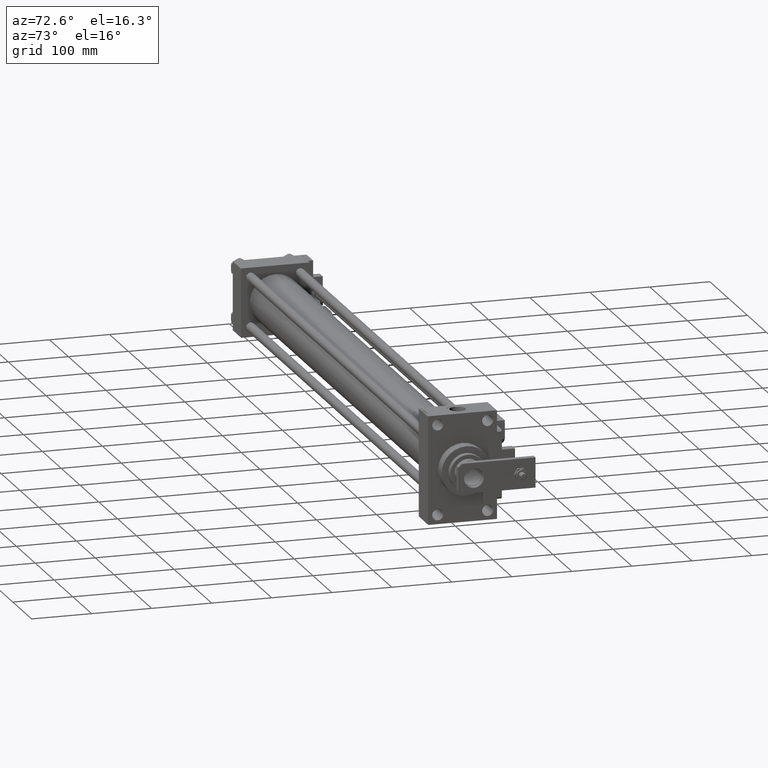
[diagram: clean part render]
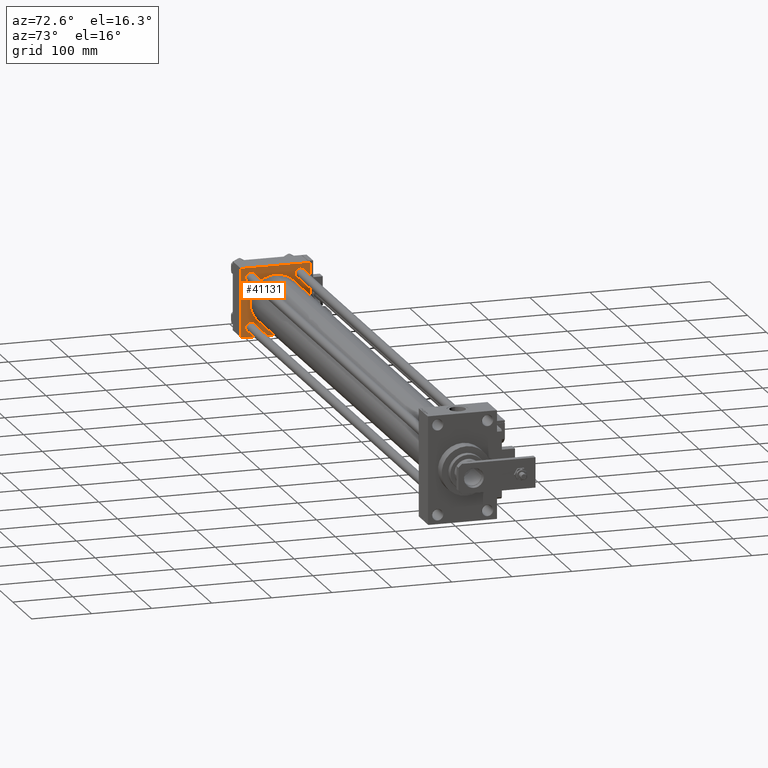
[diagram: same view with one face highlighted and labeled with its STEP entity id]
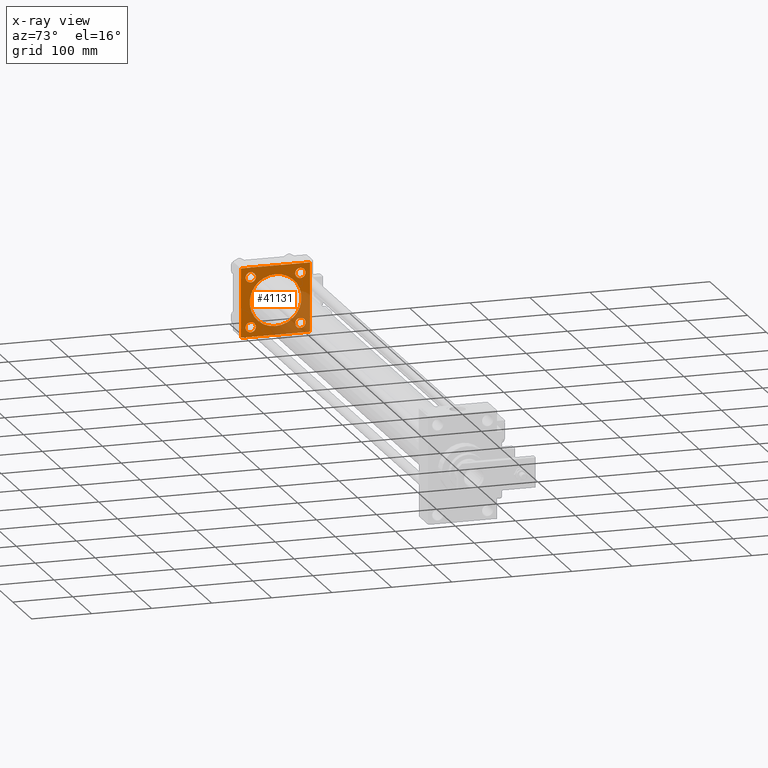
[diagram: x-ray of the same camera — body ghosted, the highlighted face saturated]
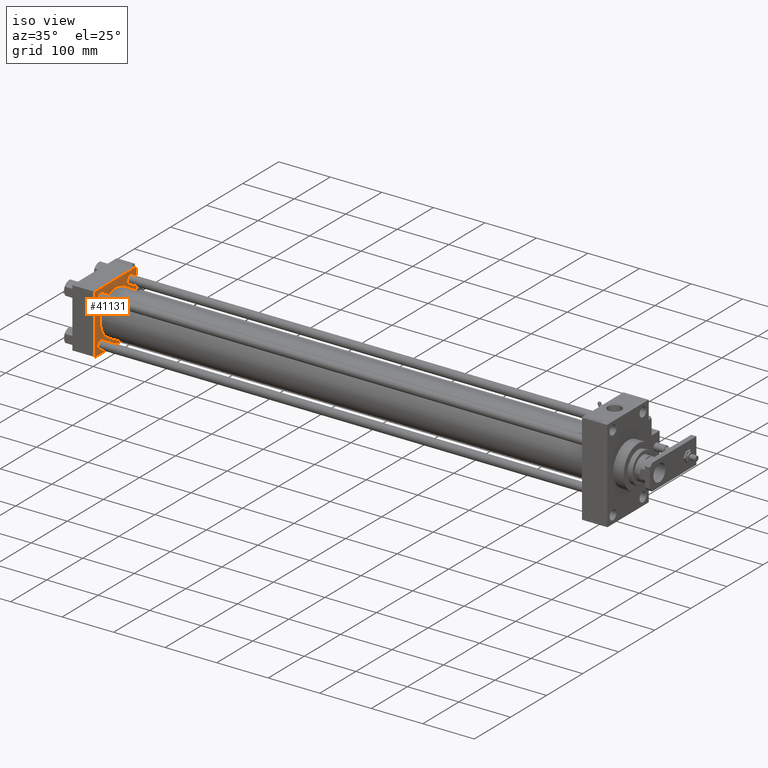
[diagram: same view with one face highlighted and labeled with its STEP entity id]
A machine part, auxiliary view. The second image highlights one B-rep face of the part: STEP entity #41131.
The next image is the same camera in x-ray: the body ghosted, the highlighted face saturated — about 28% of this face is hidden behind the body in this view.
A second angle (iso view) of the same face is appended — the face is thin or edge-on in the first view.
In plain terms, the highlighted planar face has unit normal (-1, 0, 0).
Its self-contained STEP definition (entity closure, byte-faithful):
#638 = EDGE_CURVE ( 'NONE', #30419, #25883, #2680, .T. ) ;
#668 = VERTEX_POINT ( 'NONE', #31499 ) ;
#769 = EDGE_CURVE ( 'NONE', #17637, #18040, #30004, .T. ) ;
#915 = DIRECTION ( 'NONE',  ( 0.000000000000000000, 0.000000000000000000, 1.000000000000000000 ) ) ;
#2680 = LINE ( 'NONE', #53759, #23713 ) ;
#2882 = CARTESIAN_POINT ( 'NONE',  ( 44.00000000000000000, 41.34999999999999432, -41.34999999999999432 ) ) ;
#3224 = CIRCLE ( 'NONE', #50779, 8.499999999999952038 ) ;
#4073 = EDGE_LOOP ( 'NONE', ( #46563, #31157 ) ) ;
#4359 = DIRECTION ( 'NONE',  ( 0.000000000000000000, 0.000000000000000000, -1.000000000000000000 ) ) ;
#4421 = VERTEX_POINT ( 'NONE', #50189 ) ;
#4571 = DIRECTION ( 'NONE',  ( -1.000000000000000000, 0.000000000000000000, -0.000000000000000000 ) ) ;
#5674 = CARTESIAN_POINT ( 'NONE',  ( 44.00000000000000000, 41.34999999999999432, 41.34999999999999432 ) ) ;
#5953 = DIRECTION ( 'NONE',  ( -1.000000000000000000, 0.000000000000000000, -0.000000000000000000 ) ) ;
#6256 = CARTESIAN_POINT ( 'NONE',  ( 44.00000000000000000, 57.50000000000000000, -56.99999999999997158 ) ) ;
#6493 = DIRECTION ( 'NONE',  ( -1.000000000000000000, 0.000000000000000000, -0.000000000000000000 ) ) ;
#7321 = DIRECTION ( 'NONE',  ( 0.000000000000000000, 0.000000000000000000, 1.000000000000000000 ) ) ;
#7420 = DIRECTION ( 'NONE',  ( -1.000000000000000000, 0.000000000000000000, -0.000000000000000000 ) ) ;
#7548 = VERTEX_POINT ( 'NONE', #36590 ) ;
#7612 = CARTESIAN_POINT ( 'NONE',  ( 44.00000000000000000, 41.34999999999999432, -41.34999999999999432 ) ) ;
#7693 = EDGE_CURVE ( 'NONE', #4421, #18438, #38244, .T. ) ;
#7730 = EDGE_LOOP ( 'NONE', ( #8451, #51712 ) ) ;
#8241 = CIRCLE ( 'NONE', #15430, 43.00000000000000000 ) ;
#8451 = ORIENTED_EDGE ( 'NONE', *, *, #39425, .T. ) ;
#8848 = EDGE_CURVE ( 'NONE', #41054, #18438, #33972, .T. ) ;
#9044 = CARTESIAN_POINT ( 'NONE',  ( 44.00000000000000000, 41.34999999999999432, 41.34999999999999432 ) ) ;
#9985 = CARTESIAN_POINT ( 'NONE',  ( 44.00000000000000000, 57.50000000000000000, 57.00000000000004263 ) ) ;
#10122 = VERTEX_POINT ( 'NONE', #11845 ) ;
#11064 = VERTEX_POINT ( 'NONE', #51135 ) ;
#11366 = ORIENTED_EDGE ( 'NONE', *, *, #7693, .T. ) ;
#11567 = ORIENTED_EDGE ( 'NONE', *, *, #20965, .T. ) ;
#11668 = ORIENTED_EDGE ( 'NONE', *, *, #46370, .T. ) ;
#11845 = CARTESIAN_POINT ( 'NONE',  ( 44.00000000000000000, -57.50000000000000000, 56.99999999999997868 ) ) ;
#11906 = CARTESIAN_POINT ( 'NONE',  ( 44.00000000000000000, 0.000000000000000000, 0.000000000000000000 ) ) ;
#11960 = DIRECTION ( 'NONE',  ( -1.000000000000000000, 0.000000000000000000, -0.000000000000000000 ) ) ;
#12164 = DIRECTION ( 'NONE',  ( 0.000000000000000000, -1.000000000000000000, -1.810146235801885567E-16 ) ) ;
#13794 = CIRCLE ( 'NONE', #45182, 43.00000000000000000 ) ;
#14079 = AXIS2_PLACEMENT_3D ( 'NONE', #11906, #7420, #54840 ) ;
#15021 = CARTESIAN_POINT ( 'NONE',  ( 44.00000000000000000, -57.50000000000000000, 56.99999999999997868 ) ) ;
#15032 = EDGE_CURVE ( 'NONE', #41054, #49702, #37532, .T. ) ;
#15286 = DIRECTION ( 'NONE',  ( 1.000000000000000000, -0.000000000000000000, 0.000000000000000000 ) ) ;
#15430 = AXIS2_PLACEMENT_3D ( 'NONE', #19763, #15286, #27897 ) ;
#16249 = CARTESIAN_POINT ( 'NONE',  ( 44.00000000000000000, -41.34999999999998721, 49.84999999999995879 ) ) ;
#16428 = LINE ( 'NONE', #50952, #48896 ) ;
#16909 = DIRECTION ( 'NONE',  ( 0.000000000000000000, 0.000000000000000000, 1.000000000000000000 ) ) ;
#16945 = PLANE ( 'NONE',  #14079 ) ;
#17551 = CARTESIAN_POINT ( 'NONE',  ( 44.00000000000000000, -41.34999999999998721, 41.35000000000000142 ) ) ;
#17637 = VERTEX_POINT ( 'NONE', #26317 ) ;
#17737 = CARTESIAN_POINT ( 'NONE',  ( 44.00000000000000000, -57.00000000000001421, -57.50000000000000711 ) ) ;
#18040 = VERTEX_POINT ( 'NONE', #29367 ) ;
#18360 = ORIENTED_EDGE ( 'NONE', *, *, #38151, .F. ) ;
#18438 = VERTEX_POINT ( 'NONE', #52501 ) ;
#18721 = EDGE_CURVE ( 'NONE', #48885, #26291, #41425, .T. ) ;
#18867 = EDGE_CURVE ( 'NONE', #11064, #22730, #8241, .T. ) ;
#19374 = VECTOR ( 'NONE', #12164, 1000.000000000000000 ) ;
#19694 = ORIENTED_EDGE ( 'NONE', *, *, #28767, .T. ) ;
#19763 = CARTESIAN_POINT ( 'NONE',  ( 44.00000000000004263, -2.602085213965210642E-15, 0.000000000000000000 ) ) ;
#20053 = FACE_BOUND ( 'NONE', #35470, .T. ) ;
#20556 = DIRECTION ( 'NONE',  ( 0.000000000000000000, 0.000000000000000000, 1.000000000000000000 ) ) ;
#20609 = FACE_BOUND ( 'NONE', #42533, .T. ) ;
#20965 = EDGE_CURVE ( 'NONE', #668, #52583, #21729, .T. ) ;
#21033 = VERTEX_POINT ( 'NONE', #48084 ) ;
#21162 = FACE_BOUND ( 'NONE', #4073, .T. ) ;
#21729 = CIRCLE ( 'NONE', #53113, 8.499999999999952038 ) ;
#22004 = EDGE_LOOP ( 'NONE', ( #41856, #46716 ) ) ;
#22730 = VERTEX_POINT ( 'NONE', #24453 ) ;
#23064 = DIRECTION ( 'NONE',  ( 0.000000000000000000, 0.000000000000000000, 1.000000000000000000 ) ) ;
#23302 = EDGE_CURVE ( 'NONE', #7548, #10122, #49251, .T. ) ;
#23422 = DIRECTION ( 'NONE',  ( -0.000000000000000000, -0.7071067811865574537, -0.7071067811865376918 ) ) ;
#23713 = VECTOR ( 'NONE', #32703, 1000.000000000000114 ) ;
#24070 = CARTESIAN_POINT ( 'NONE',  ( 44.00000000000000000, 57.50000000000000000, -57.00000000000000000 ) ) ;
#24224 = DIRECTION ( 'NONE',  ( 1.000000000000000000, -0.000000000000000000, 0.000000000000000000 ) ) ;
#24453 = CARTESIAN_POINT ( 'NONE',  ( 44.00000000000004263, -2.602085213965210642E-15, 43.00000000000000000 ) ) ;
#25092 = FACE_BOUND ( 'NONE', #7730, .T. ) ;
#25452 = VERTEX_POINT ( 'NONE', #55077 ) ;
#25555 = DIRECTION ( 'NONE',  ( 0.000000000000000000, -1.000000000000000000, -1.206764157201257291E-16 ) ) ;
#25883 = VERTEX_POINT ( 'NONE', #42667 ) ;
#26291 = VERTEX_POINT ( 'NONE', #35481 ) ;
#26317 = CARTESIAN_POINT ( 'NONE',  ( 44.00000000000000000, 41.34999999999999432, -49.84999999999995168 ) ) ;
#27795 = VECTOR ( 'NONE', #33315, 1000.000000000000000 ) ;
#27897 = DIRECTION ( 'NONE',  ( 0.000000000000000000, 0.000000000000000000, 1.000000000000000000 ) ) ;
#27943 = AXIS2_PLACEMENT_3D ( 'NONE', #17551, #11960, #34660 ) ;
#28665 = DIRECTION ( 'NONE',  ( -1.000000000000000000, 0.000000000000000000, -0.000000000000000000 ) ) ;
#28767 = EDGE_CURVE ( 'NONE', #21033, #25452, #42334, .T. ) ;
#29063 = CIRCLE ( 'NONE', #43401, 8.499999999999952038 ) ;
#29367 = CARTESIAN_POINT ( 'NONE',  ( 44.00000000000000000, 41.34999999999999432, -32.85000000000004405 ) ) ;
#29852 = CARTESIAN_POINT ( 'NONE',  ( 44.00000000000000000, -41.34999999999998721, -41.35000000000000142 ) ) ;
#30004 = CIRCLE ( 'NONE', #45250, 8.499999999999952038 ) ;
#30419 = VERTEX_POINT ( 'NONE', #9985 ) ;
#31157 = ORIENTED_EDGE ( 'NONE', *, *, #32857, .T. ) ;
#31499 = CARTESIAN_POINT ( 'NONE',  ( 44.00000000000000000, -41.34999999999998721, -32.85000000000005116 ) ) ;
#31726 = EDGE_CURVE ( 'NONE', #22730, #11064, #13794, .T. ) ;
#32558 = ORIENTED_EDGE ( 'NONE', *, *, #15032, .T. ) ;
#32560 = CARTESIAN_POINT ( 'NONE',  ( 44.00000000000000000, -57.50000000000000000, 57.49999999999999289 ) ) ;
#32703 = DIRECTION ( 'NONE',  ( 0.000000000000000000, -0.7071067811865573427, 0.7071067811865376918 ) ) ;
#32857 = EDGE_CURVE ( 'NONE', #18040, #17637, #29063, .T. ) ;
#32963 = FACE_BOUND ( 'NONE', #22004, .T. ) ;
#33315 = DIRECTION ( 'NONE',  ( -0.000000000000000000, 0.7071067811865328068, 0.7071067811865622277 ) ) ;
#33329 = EDGE_CURVE ( 'NONE', #10122, #4421, #45197, .T. ) ;
#33481 = LINE ( 'NONE', #50610, #19374 ) ;
#33587 = VECTOR ( 'NONE', #37044, 1000.000000000000000 ) ;
#33727 = DIRECTION ( 'NONE',  ( -1.000000000000000000, 0.000000000000000000, -0.000000000000000000 ) ) ;
#33972 = LINE ( 'NONE', #39020, #39306 ) ;
#34660 = DIRECTION ( 'NONE',  ( 0.000000000000000000, 0.000000000000000000, 1.000000000000000000 ) ) ;
#35409 = ORIENTED_EDGE ( 'NONE', *, *, #47067, .T. ) ;
#35470 = EDGE_LOOP ( 'NONE', ( #19694, #35409 ) ) ;
#35481 = CARTESIAN_POINT ( 'NONE',  ( 44.00000000000000000, -41.34999999999998721, 32.85000000000005116 ) ) ;
#36270 = ORIENTED_EDGE ( 'NONE', *, *, #23302, .T. ) ;
#36590 = CARTESIAN_POINT ( 'NONE',  ( 44.00000000000000000, -56.99999999999997158, 57.49999999999999289 ) ) ;
#37044 = DIRECTION ( 'NONE',  ( 0.000000000000000000, 6.033820786006285224E-17, -1.000000000000000000 ) ) ;
#37532 = LINE ( 'NONE', #24070, #27795 ) ;
#37985 = ORIENTED_EDGE ( 'NONE', *, *, #39035, .T. ) ;
#38151 = EDGE_CURVE ( 'NONE', #30419, #49702, #16428, .T. ) ;
#38244 = LINE ( 'NONE', #17737, #53612 ) ;
#38403 = DIRECTION ( 'NONE',  ( 0.000000000000000000, 0.000000000000000000, 1.000000000000000000 ) ) ;
#38551 = DIRECTION ( 'NONE',  ( -1.000000000000000000, 0.000000000000000000, -0.000000000000000000 ) ) ;
#39020 = CARTESIAN_POINT ( 'NONE',  ( 44.00000000000000000, 57.50000000000000000, -57.49999999999999289 ) ) ;
#39035 = EDGE_CURVE ( 'NONE', #25883, #7548, #33481, .T. ) ;
#39306 = VECTOR ( 'NONE', #25555, 1000.000000000000000 ) ;
#39425 = EDGE_CURVE ( 'NONE', #26291, #48885, #3224, .T. ) ;
#40734 = ORIENTED_EDGE ( 'NONE', *, *, #8848, .F. ) ;
#41054 = VERTEX_POINT ( 'NONE', #44778 ) ;
#41131 = ADVANCED_FACE ( 'NONE', ( #20609, #21162, #25092, #20053, #32963, #55404 ), #16945, .F. ) ;
#41425 = CIRCLE ( 'NONE', #27943, 8.499999999999952038 ) ;
#41570 = CARTESIAN_POINT ( 'NONE',  ( 44.00000000000000000, -41.34999999999998721, -41.35000000000000142 ) ) ;
#41621 = EDGE_LOOP ( 'NONE', ( #40734, #32558, #18360, #48274, #37985, #36270, #46165, #11366 ) ) ;
#41791 = CARTESIAN_POINT ( 'NONE',  ( 44.00000000000000000, -41.34999999999998721, 41.35000000000000142 ) ) ;
#41856 = ORIENTED_EDGE ( 'NONE', *, *, #31726, .F. ) ;
#42334 = CIRCLE ( 'NONE', #48624, 8.499999999999952038 ) ;
#42533 = EDGE_LOOP ( 'NONE', ( #11668, #11567 ) ) ;
#42621 = DIRECTION ( 'NONE',  ( -1.000000000000000000, 0.000000000000000000, -0.000000000000000000 ) ) ;
#42667 = CARTESIAN_POINT ( 'NONE',  ( 44.00000000000000000, 57.00000000000001421, 57.50000000000001421 ) ) ;
#43278 = DIRECTION ( 'NONE',  ( 0.000000000000000000, 0.7071067811865524577, -0.7071067811865426878 ) ) ;
#43401 = AXIS2_PLACEMENT_3D ( 'NONE', #7612, #28665, #50265 ) ;
#44778 = CARTESIAN_POINT ( 'NONE',  ( 44.00000000000000000, 57.00000000000002842, -57.49999999999999289 ) ) ;
#45182 = AXIS2_PLACEMENT_3D ( 'NONE', #46666, #24224, #16909 ) ;
#45197 = LINE ( 'NONE', #32560, #33587 ) ;
#45250 = AXIS2_PLACEMENT_3D ( 'NONE', #2882, #33727, #20556 ) ;
#45691 = CIRCLE ( 'NONE', #47444, 8.499999999999952038 ) ;
#45800 = CARTESIAN_POINT ( 'NONE',  ( 44.00000000000000000, -41.34999999999998721, -49.84999999999995879 ) ) ;
#46165 = ORIENTED_EDGE ( 'NONE', *, *, #33329, .T. ) ;
#46370 = EDGE_CURVE ( 'NONE', #52583, #668, #45691, .T. ) ;
#46563 = ORIENTED_EDGE ( 'NONE', *, *, #769, .T. ) ;
#46666 = CARTESIAN_POINT ( 'NONE',  ( 44.00000000000004263, -2.602085213965210642E-15, 0.000000000000000000 ) ) ;
#46705 = AXIS2_PLACEMENT_3D ( 'NONE', #9044, #4571, #47505 ) ;
#46716 = ORIENTED_EDGE ( 'NONE', *, *, #18867, .F. ) ;
#47067 = EDGE_CURVE ( 'NONE', #25452, #21033, #50304, .T. ) ;
#47444 = AXIS2_PLACEMENT_3D ( 'NONE', #41570, #6493, #7321 ) ;
#47505 = DIRECTION ( 'NONE',  ( 0.000000000000000000, 0.000000000000000000, 1.000000000000000000 ) ) ;
#48084 = CARTESIAN_POINT ( 'NONE',  ( 44.00000000000000000, 41.34999999999999432, 32.85000000000004405 ) ) ;
#48274 = ORIENTED_EDGE ( 'NONE', *, *, #638, .T. ) ;
#48624 = AXIS2_PLACEMENT_3D ( 'NONE', #5674, #5953, #23064 ) ;
#48885 = VERTEX_POINT ( 'NONE', #16249 ) ;
#48896 = VECTOR ( 'NONE', #4359, 1000.000000000000000 ) ;
#49031 = VECTOR ( 'NONE', #23422, 999.9999999999998863 ) ;
#49251 = LINE ( 'NONE', #15021, #49031 ) ;
#49702 = VERTEX_POINT ( 'NONE', #6256 ) ;
#50189 = CARTESIAN_POINT ( 'NONE',  ( 44.00000000000000000, -57.49999999999999289, -57.00000000000003553 ) ) ;
#50265 = DIRECTION ( 'NONE',  ( 0.000000000000000000, 0.000000000000000000, 1.000000000000000000 ) ) ;
#50304 = CIRCLE ( 'NONE', #46705, 8.499999999999952038 ) ;
#50610 = CARTESIAN_POINT ( 'NONE',  ( 44.00000000000000000, 57.50000000000000000, 57.50000000000001421 ) ) ;
#50779 = AXIS2_PLACEMENT_3D ( 'NONE', #41791, #42621, #38403 ) ;
#50952 = CARTESIAN_POINT ( 'NONE',  ( 44.00000000000000000, 57.50000000000000000, 57.50000000000001421 ) ) ;
#51135 = CARTESIAN_POINT ( 'NONE',  ( 44.00000000000004263, 2.663896022368408223E-15, -43.00000000000000000 ) ) ;
#51712 = ORIENTED_EDGE ( 'NONE', *, *, #18721, .T. ) ;
#52501 = CARTESIAN_POINT ( 'NONE',  ( 44.00000000000000000, -57.00000000000001421, -57.50000000000000711 ) ) ;
#52583 = VERTEX_POINT ( 'NONE', #45800 ) ;
#53113 = AXIS2_PLACEMENT_3D ( 'NONE', #29852, #38551, #915 ) ;
#53612 = VECTOR ( 'NONE', #43278, 1000.000000000000000 ) ;
#53759 = CARTESIAN_POINT ( 'NONE',  ( 44.00000000000000000, 57.00000000000001421, 57.50000000000001421 ) ) ;
#54840 = DIRECTION ( 'NONE',  ( -0.000000000000000000, 0.000000000000000000, 1.000000000000000000 ) ) ;
#55077 = CARTESIAN_POINT ( 'NONE',  ( 44.00000000000000000, 41.34999999999999432, 49.84999999999995168 ) ) ;
#55404 = FACE_OUTER_BOUND ( 'NONE', #41621, .T. ) ;